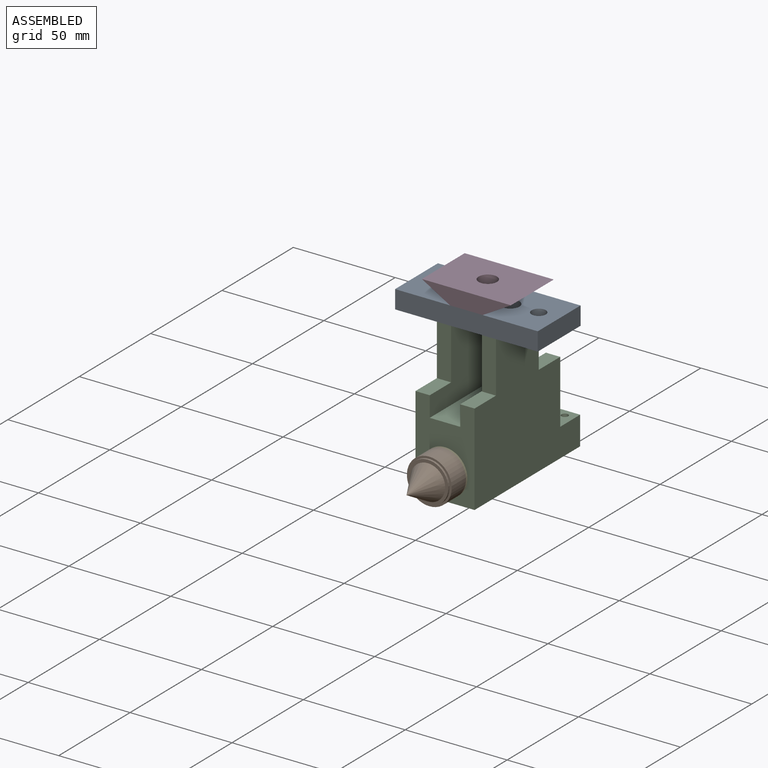
[diagram: assembled view]
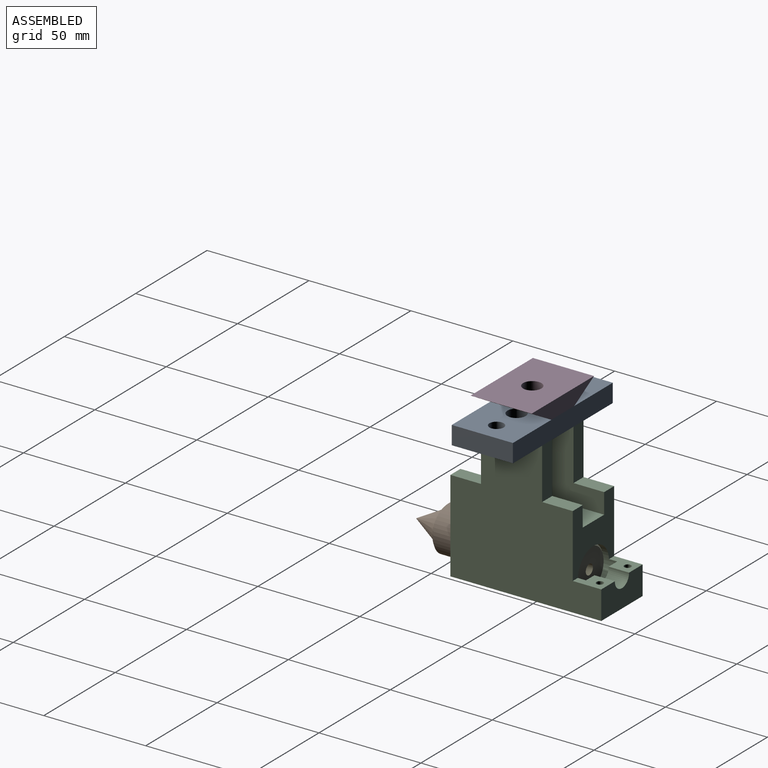
[diagram: assembled view, second angle]
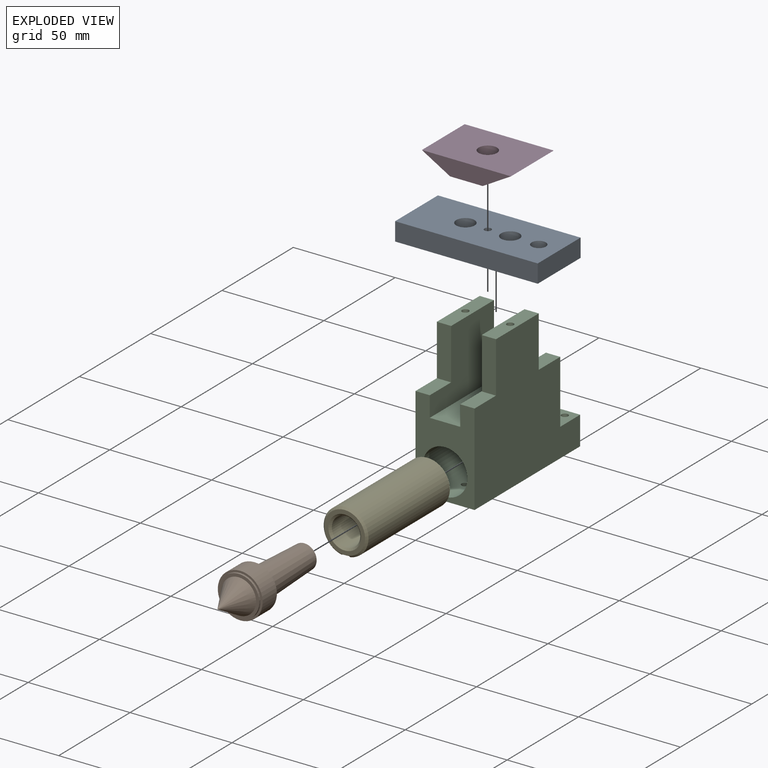
[diagram: exploded view]
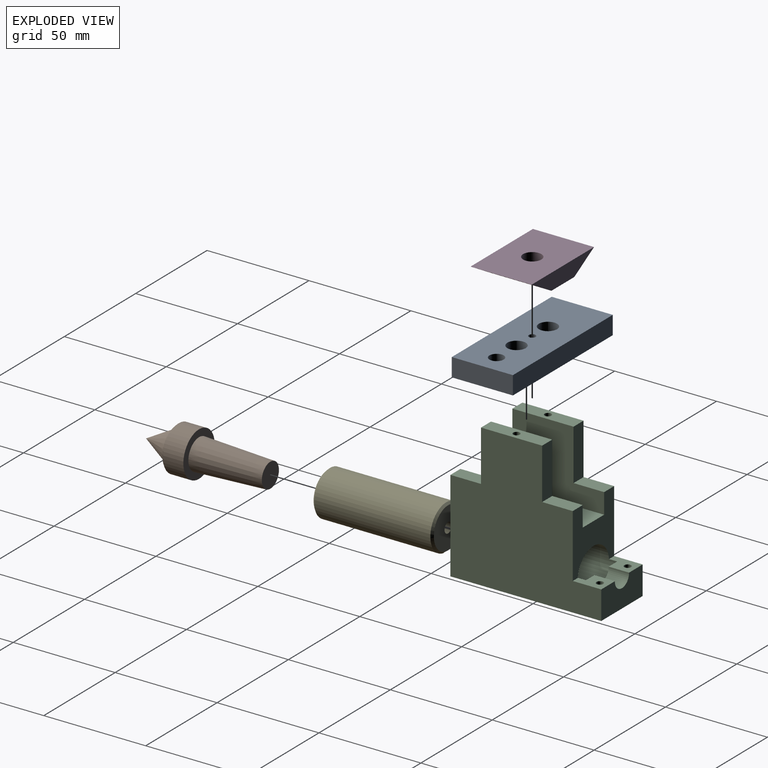
[diagram: exploded view, second angle]
ASSEMBLY  parts=5 mates=4
PART A: 14 faces, bbox 70x30x9 mm
  f0: plane 30x9mm, normal (-1,0,0), area 270mm2, adj f1,f3,f4,f5
  f1: plane 70x9mm, normal (0,-1,0), area 630mm2, adj f0,f2,f4,f5
  f2: plane 30x9mm, normal (1,0,0), area 270mm2, adj f1,f3,f4,f5
  f3: plane 70x9mm, normal (0,1,0), area 630mm2, adj f0,f2,f4,f5
  f4: plane 70x30mm, normal (0,0,1), area 1925.7mm2, adj f0,f1,f2,f3,f6,f7,f10,f13
  f5: plane 70x30mm, normal (0,0,-1), area 2021.2mm2, adj f0,f1,f2,f3,f6,f7,f8,f11
  f6: cylinder r=1.65mm len=9mm, axis (0,0,-1), area 93.3mm2, adj f4,f5
  f7: cylinder r=3.5mm len=9mm, axis (0,0,-1), area 197.9mm2, adj f4,f5
  f8: cylinder r=2.25mm len=4.5mm, axis (0,0,1), area 26.9mm2, adj f5,f9
  f9: plane 9x9mm, normal (0,0,1), area 47.7mm2, adj f8,f10
  f10: cylinder r=4.5mm len=9mm, axis (0,0,1), area 200.7mm2, adj f4,f9
  f11: cylinder r=2.25mm len=4.5mm, axis (0,0,1), area 26.9mm2, adj f5,f12
  f12: plane 9x9mm, normal (0,0,1), area 47.7mm2, adj f11,f13
  f13: cylinder r=4.5mm len=9mm, axis (0,0,1), area 200.7mm2, adj f4,f12
PART B: 8 faces, bbox 22x61x22 mm
  f0: cone r=0mm half-angle=29.5deg, axis (0,-1,0), area 460.4mm2, adj f1
  f1: plane 20x20mm, normal (0,1,0), area 87.2mm2, adj f0,f2
  f2: cylinder r=10mm len=20mm, axis (0,1,0), area 62.8mm2, adj f1,f3
  f3: plane 22x22mm, normal (0,1,0), area 66mm2, adj f2,f4
  f4: cylinder r=11mm len=22mm, axis (0,1,0), area 691.2mm2, adj f3,f5
  f5: plane 22x22mm, normal (0,-1,0), area 203.4mm2, adj f4,f6
  f6: cone r=7.5mm half-angle=2.5deg, axis (0,1,0), area 1485.8mm2, adj f5,f7
  f7: plane 12x12mm, normal (0,-1,0), area 113.1mm2, adj f6
PART C: 31 faces, bbox 74x70x29 mm
  f0: plane 14x9.5mm, normal (0,-1,0), area 100.6mm2, adj f12,f14,f17,f21,f22,f23,f29
  f1: plane 25x7mm, normal (-1,0,0), area 175mm2, adj f2,f5,f16,f19
  f2: plane 30x7mm, normal (0,-1,0), area 201.4mm2, adj f1,f3,f16,f19,f25
  f3: plane 25x7mm, normal (1,0,0), area 175mm2, adj f2,f4,f16,f19
  f4: plane 15x7mm, normal (0,-1,0), area 105mm2, adj f3,f10,f16,f19
  f5: plane 15x7mm, normal (0,-1,0), area 105mm2, adj f1,f14,f16,f19
  f6: plane 25x7mm, normal (-1,0,0), area 175mm2, adj f7,f15,f17,f20
  f7: plane 30x7mm, normal (0,-1,0), area 201.4mm2, adj f6,f8,f17,f20,f27
  f8: plane 25x7mm, normal (1,0,0), area 175mm2, adj f7,f9,f17,f20
  f9: plane 15x7mm, normal (0,-1,0), area 105mm2, adj f8,f10,f17,f20
  f10: plane 45x29mm, normal (1,0,0), area 774.9mm2, adj f4,f9,f11,f16,f17,f18,f19,f20
  f11: plane 74x29mm, normal (0,1,0), area 2120.3mm2, adj f10,f12,f16,f17,f28,f29,f30
  f12: plane 29x14mm, normal (-1,0,0), area 366.7mm2, adj f0,f11,f13,f16,f17,f23
  f13: plane 14x9.5mm, normal (0,-1,0), area 100.6mm2, adj f12,f14,f16,f21,f22,f23,f28
  f14: plane 31x29mm, normal (-1,0,0), area 580.9mm2, adj f0,f5,f13,f15,f16,f17,f18,f19
  f15: plane 15x7mm, normal (0,-1,0), area 105mm2, adj f6,f14,f17,f20
  f16: plane 74x70mm, normal (0,0,1), area 3646mm2, adj f1,f2,f3,f4,f5,f10,f11,f12
  f17: plane 74x70mm, normal (0,0,-1), area 3646mm2, adj f0,f6,f7,f8,f9,f10,f11,f12
  f18: plane 60x15mm, normal (0,-1,0), area 900mm2, adj f10,f14,f19,f20
  f19: plane 60x35mm, normal (0,0,-1), area 1350mm2, adj f1,f2,f3,f4,f5,f10,f14,f18
  f20: plane 60x35mm, normal (0,0,1), area 1350mm2, adj f6,f7,f8,f9,f10,f14,f15,f18
  f21: plane 22x12mm, normal (1,0,0), area 172.8mm2, adj f0,f13,f22,f23
  f22: cylinder r=11mm len=64mm, axis (1,0,0), area 4284.6mm2, adj f0,f10,f13,f14,f21,f30
  f23: cylinder r=5mm len=10mm, axis (-1,0,0), area 157.1mm2, adj f0,f12,f13,f21
  f24: cone r=1.65mm half-angle=59deg, axis (0,-1,0), area 10mm2, adj f25
  f25: cylinder r=1.65mm len=11.5mm, axis (0,-1,0), area 119.2mm2, adj f2,f24
  f26: cone r=1.65mm half-angle=59deg, axis (0,-1,0), area 10mm2, adj f27
  f27: cylinder r=1.65mm len=11.5mm, axis (0,-1,0), area 119.2mm2, adj f7,f26
  f28: cylinder r=1.65mm len=14mm, axis (0,-1,0), area 145.1mm2, adj f11,f13
  f29: cylinder r=1.65mm len=14mm, axis (0,-1,0), area 145.1mm2, adj f0,f11
  f30: cylinder r=1.65mm len=3.3mm, axis (0,1,0), area 21.4mm2, adj f11,f22
PART D: 9 faces, bbox 43.7x8x30 mm
  f0: plane 43.71x30mm, normal (0,-1,0), area 1247.8mm2, adj f1,f3,f4,f5,f8
  f1: plane 30x13.86mm, normal (0.5,0.87,0), area 480mm2, adj f0,f2,f4,f5
  f2: plane 30x16mm, normal (0,1,0), area 464.1mm2, adj f1,f3,f4,f5,f6
  f3: plane 30x13.86mm, normal (-0.5,0.87,0), area 480mm2, adj f0,f2,f4,f5
  f4: plane 43.71x8mm, normal (0,0,1), area 238.9mm2, adj f0,f1,f2,f3
  f5: plane 43.71x8mm, normal (0,0,-1), area 238.9mm2, adj f0,f1,f2,f3
  f6: cylinder r=2.25mm len=4.5mm, axis (0,-1,0), area 12.7mm2, adj f2,f7
  f7: plane 9x9mm, normal (0,-1,0), area 47.7mm2, adj f6,f8
  f8: cylinder r=4.5mm len=9mm, axis (0,-1,0), area 200.7mm2, adj f0,f7
PART E: 12 faces, bbox 22x22x59 mm
  f0: cylinder r=11mm len=57mm, axis (0,0,-1), area 3710.3mm2, adj f6,f7,f10,f11
  f1: plane 20x20mm, normal (0,0,1), area 113.1mm2, adj f9,f10
  f2: plane 20x20mm, normal (0,0,-1), area 294.5mm2, adj f5,f11
  f3: cylinder r=7mm len=48mm, axis (0,0,1), area 2111.2mm2, adj f4,f9
  f4: plane 14x14mm, normal (0,0,1), area 134.3mm2, adj f3,f5
  f5: cylinder r=2.5mm len=10mm, axis (0,0,-1), area 157.1mm2, adj f2,f4
  f6: plane 58.61x0.82mm, normal (1,0,0), area 47.2mm2, adj f0,f8,f10,f11
  f7: plane 58.61x0.82mm, normal (-1,0,0), area 47.2mm2, adj f0,f8,f10,f11
  f8: plane 59x4mm, normal (0,1,0), area 235.5mm2, adj f6,f7,f10,f11
  f9: cone r=7mm half-angle=45deg, axis (0,0,1), area 66.6mm2, adj f1,f3
  f10: cone r=10mm half-angle=45deg, axis (0,0,-1), area 88mm2, adj f0,f1,f6,f7,f8
  f11: cone r=11mm half-angle=45deg, axis (0,0,1), area 88mm2, adj f0,f2,f6,f7,f8
PLACE A t=(0.5,0,-9)mm fixed
PLACE B rot(axis=(0,0,1),180deg) t=(0.5,4,-66)mm
PLACE C rot(axis=(-0.58,0.58,-0.58),120deg) t=(-14,15,-9)mm
PLACE D rot(axis=(-1,0,0),90deg) t=(-21.36,-15,8)mm
PLACE E rot(axis=(0,-0.71,0.71),180deg) t=(0.5,28,-66)mm
MATE fastened C.f22 <-> E.f0  axis (0,-1,0) through (0.5,-30,-66)mm
MATE fastened B.f0 <-> E.f0  axis (0,-1,0) through (0.5,-31,-66)mm
MATE fastened C.f26 <-> A.f8  axis (0,0,1) through (-10.5,0,-9)mm
MATE fastened D.f6 <-> A.f6  axis (0,0,-1) through (0.5,0,0)mm
